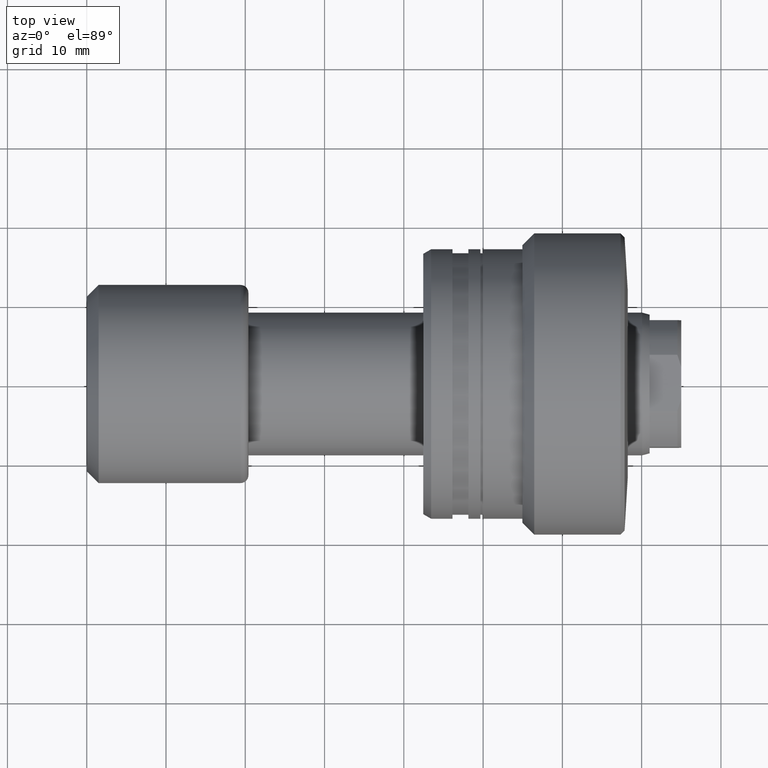
[diagram: clean part render]
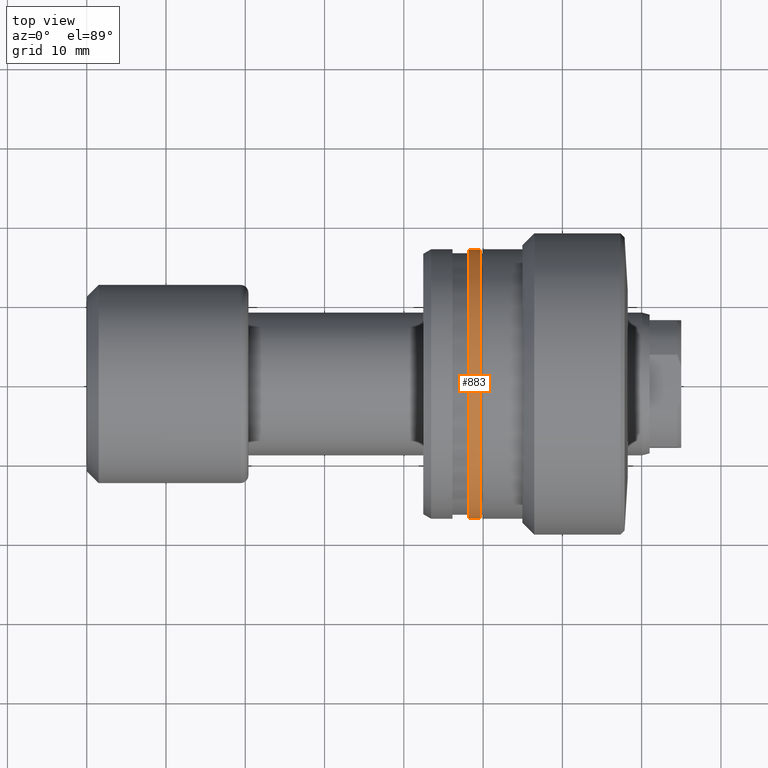
[diagram: same view with one face highlighted and labeled with its STEP entity id]
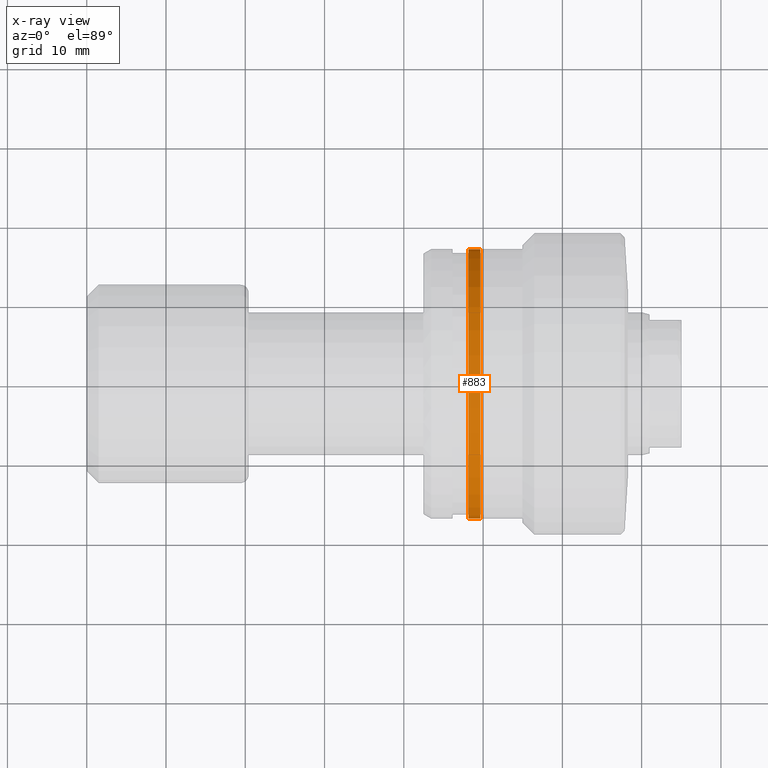
[diagram: x-ray of the same camera — body ghosted, the highlighted face saturated]
A machine part, top view. The second image highlights one B-rep face of the part: STEP entity #883.
The next image is the same camera in x-ray: the body ghosted, the highlighted face saturated — about 0% of this face is hidden behind the body in this view.
In plain terms, the highlighted cylindrical surface (partial cylindrical patch) has radius 17 mm, axis along (-1, 0, 0).
Its self-contained STEP definition (entity closure, byte-faithful):
#17 = EDGE_CURVE ( 'NONE', #306, #2085, #1832, .T. ) ;
#77 = DIRECTION ( 'NONE',  ( -1.020425574104004591E-15, -1.000000000000000000, 0.000000000000000000 ) ) ;
#88 = DIRECTION ( 'NONE',  ( -1.000000000000000000, 9.810081908519753690E-16, -0.000000000000000000 ) ) ;
#236 = AXIS2_PLACEMENT_3D ( 'NONE', #1006, #88, #77 ) ;
#306 = VERTEX_POINT ( 'NONE', #2409 ) ;
#325 = VECTOR ( 'NONE', #1161, 1000.000000000000000 ) ;
#442 = CARTESIAN_POINT ( 'NONE',  ( -19.29999999999997584, -1.077149227009689639E-14, 0.000000000000000000 ) ) ;
#500 = EDGE_CURVE ( 'NONE', #609, #1411, #1949, .T. ) ;
#546 = ORIENTED_EDGE ( 'NONE', *, *, #703, .F. ) ;
#609 = VERTEX_POINT ( 'NONE', #1330 ) ;
#648 = LINE ( 'NONE', #1568, #325 ) ;
#669 = ORIENTED_EDGE ( 'NONE', *, *, #17, .F. ) ;
#703 = EDGE_CURVE ( 'NONE', #609, #306, #1127, .T. ) ;
#781 = CARTESIAN_POINT ( 'NONE',  ( -30.28002276692734185, -16.99999999999999289, 0.000000000000000000 ) ) ;
#811 = CARTESIAN_POINT ( 'NONE',  ( -19.29999999999995808, 16.99999999999998224, 2.081899558550499885E-15 ) ) ;
#883 = ADVANCED_FACE ( 'NONE', ( #907 ), #2439, .T. ) ;
#907 = FACE_OUTER_BOUND ( 'NONE', #1661, .T. ) ;
#997 = EDGE_CURVE ( 'NONE', #1411, #2085, #648, .T. ) ;
#1006 = CARTESIAN_POINT ( 'NONE',  ( -20.79999999999998650, -9.299979983818927025E-15, 0.000000000000000000 ) ) ;
#1088 = CARTESIAN_POINT ( 'NONE',  ( -20.79999999999996874, 16.99999999999998224, 2.081899558550499885E-15 ) ) ;
#1127 = LINE ( 'NONE', #781, #2342 ) ;
#1129 = ORIENTED_EDGE ( 'NONE', *, *, #500, .T. ) ;
#1161 = DIRECTION ( 'NONE',  ( -1.000000000000000000, 9.810081908519753690E-16, -0.000000000000000000 ) ) ;
#1231 = AXIS2_PLACEMENT_3D ( 'NONE', #1254, #1480, #2228 ) ;
#1254 = CARTESIAN_POINT ( 'NONE',  ( -30.28002276692732408, 0.000000000000000000, 0.000000000000000000 ) ) ;
#1330 = CARTESIAN_POINT ( 'NONE',  ( -19.29999999999999361, -17.00000000000000355, 0.000000000000000000 ) ) ;
#1367 = DIRECTION ( 'NONE',  ( -1.020425574104004591E-15, -1.000000000000000000, 0.000000000000000000 ) ) ;
#1411 = VERTEX_POINT ( 'NONE', #811 ) ;
#1480 = DIRECTION ( 'NONE',  ( -1.000000000000000000, 9.810081908519753690E-16, -0.000000000000000000 ) ) ;
#1568 = CARTESIAN_POINT ( 'NONE',  ( -30.28002276692730632, 16.99999999999999289, 2.081899558550499885E-15 ) ) ;
#1649 = ORIENTED_EDGE ( 'NONE', *, *, #997, .T. ) ;
#1661 = EDGE_LOOP ( 'NONE', ( #1129, #1649, #669, #546 ) ) ;
#1832 = CIRCLE ( 'NONE', #236, 16.99999999999999289 ) ;
#1949 = CIRCLE ( 'NONE', #2392, 16.99999999999999289 ) ;
#2085 = VERTEX_POINT ( 'NONE', #1088 ) ;
#2228 = DIRECTION ( 'NONE',  ( -1.020425574104004591E-15, -1.000000000000000000, 0.000000000000000000 ) ) ;
#2275 = DIRECTION ( 'NONE',  ( -1.000000000000000000, 9.810081908519753690E-16, -0.000000000000000000 ) ) ;
#2318 = DIRECTION ( 'NONE',  ( -1.000000000000000000, 9.810081908519753690E-16, -0.000000000000000000 ) ) ;
#2342 = VECTOR ( 'NONE', #2275, 1000.000000000000000 ) ;
#2392 = AXIS2_PLACEMENT_3D ( 'NONE', #442, #2318, #1367 ) ;
#2409 = CARTESIAN_POINT ( 'NONE',  ( -20.80000000000000426, -17.00000000000000355, 0.000000000000000000 ) ) ;
#2439 = CYLINDRICAL_SURFACE ( 'NONE', #1231, 16.99999999999999289 ) ;